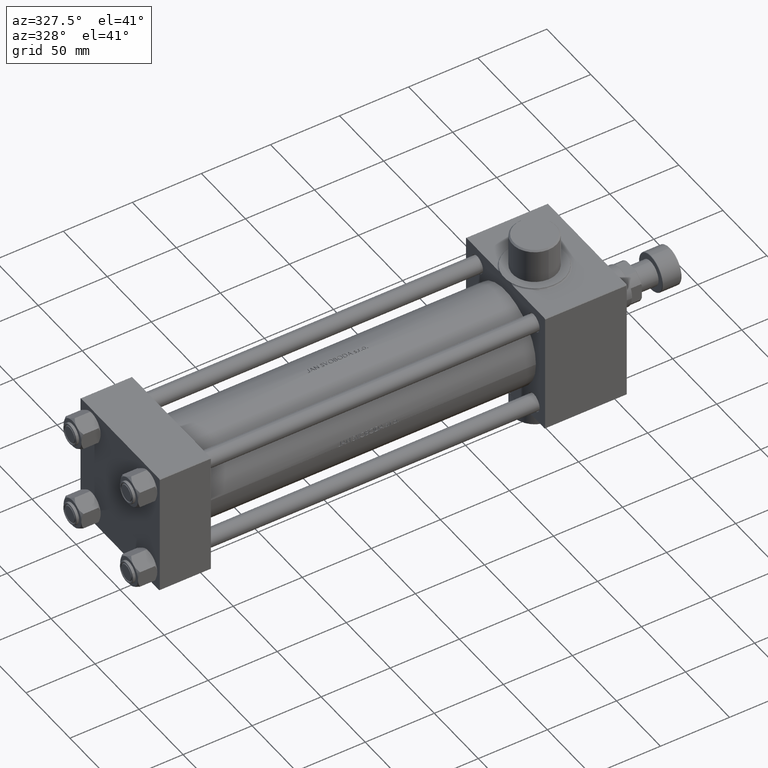
[diagram: clean part render]
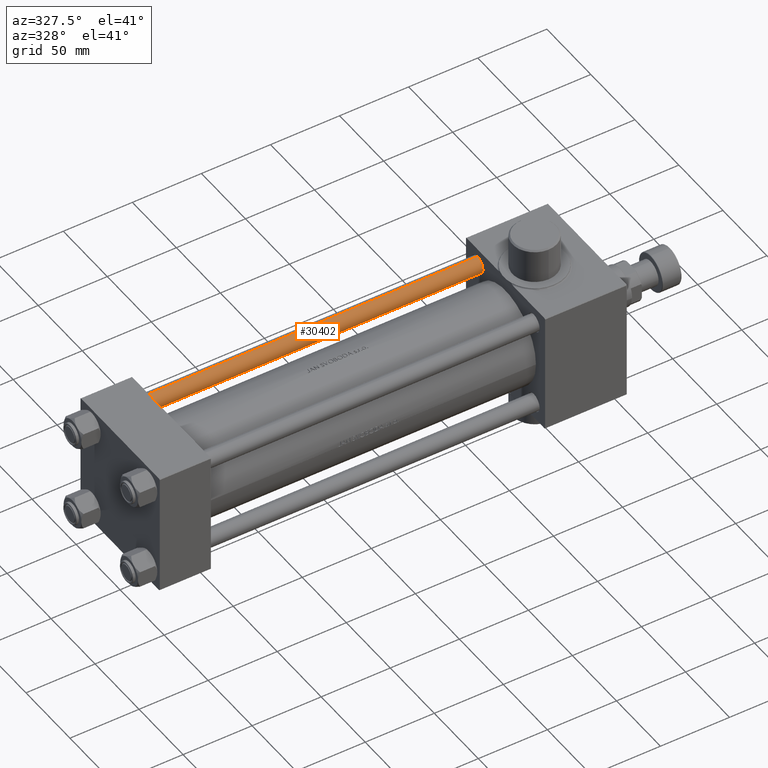
[diagram: same view with one face highlighted and labeled with its STEP entity id]
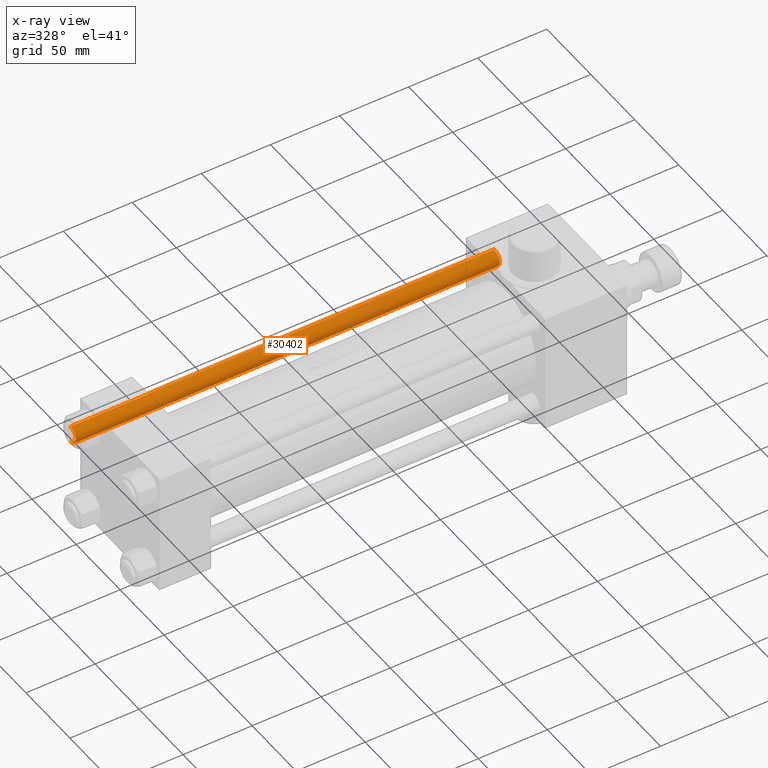
[diagram: x-ray of the same camera — body ghosted, the highlighted face saturated]
A machine part, auxiliary view. The second image highlights one B-rep face of the part: STEP entity #30402.
The next image is the same camera in x-ray: the body ghosted, the highlighted face saturated — about 0% of this face is hidden behind the body in this view.
In plain terms, the highlighted cylindrical surface (edge-blend (fillet) strip) has radius 6 mm, axis along (1, -0, 0).
Its self-contained STEP definition (entity closure, byte-faithful):
#3209 = VERTEX_POINT ( 'NONE', #24788 ) ;
#4349 = VECTOR ( 'NONE', #14843, 1000.000000000000000 ) ;
#7465 = LINE ( 'NONE', #7931, #4349 ) ;
#7869 = LINE ( 'NONE', #26436, #21107 ) ;
#7931 = CARTESIAN_POINT ( 'NONE',  ( -6.000000000000000888, 0.000000000000000000, 308.0000000000000000 ) ) ;
#10364 = DIRECTION ( 'NONE',  ( 1.000000000000000000, 0.000000000000000000, 0.000000000000000000 ) ) ;
#10816 = DIRECTION ( 'NONE',  ( -0.000000000000000000, -0.000000000000000000, 1.000000000000000000 ) ) ;
#11681 = DIRECTION ( 'NONE',  ( -0.000000000000000000, -0.000000000000000000, -1.000000000000000000 ) ) ;
#13627 = VERTEX_POINT ( 'NONE', #42666 ) ;
#14378 = CARTESIAN_POINT ( 'NONE',  ( 0.000000000000000000, 0.000000000000000000, 0.5000000000000559552 ) ) ;
#14444 = ORIENTED_EDGE ( 'NONE', *, *, #42744, .T. ) ;
#14843 = DIRECTION ( 'NONE',  ( -0.000000000000000000, -0.000000000000000000, -1.000000000000000000 ) ) ;
#18611 = CIRCLE ( 'NONE', #46669, 6.000000000000000888 ) ;
#18810 = DIRECTION ( 'NONE',  ( 0.000000000000000000, 0.000000000000000000, -1.000000000000000000 ) ) ;
#20052 = CIRCLE ( 'NONE', #29908, 6.000000000000000888 ) ;
#20176 = EDGE_CURVE ( 'NONE', #3209, #13627, #7869, .T. ) ;
#20708 = EDGE_CURVE ( 'NONE', #26702, #35475, #7465, .T. ) ;
#21107 = VECTOR ( 'NONE', #11681, 1000.000000000000000 ) ;
#21331 = EDGE_LOOP ( 'NONE', ( #32841, #14444, #36565, #26733 ) ) ;
#21916 = DIRECTION ( 'NONE',  ( -1.000000000000000000, 0.000000000000000000, 0.000000000000000000 ) ) ;
#23078 = CARTESIAN_POINT ( 'NONE',  ( 0.000000000000000000, 0.000000000000000000, 307.4999999999999432 ) ) ;
#24788 = CARTESIAN_POINT ( 'NONE',  ( 6.000000000000000888, 7.347880794884120722E-16, 307.4999999999999432 ) ) ;
#26436 = CARTESIAN_POINT ( 'NONE',  ( 6.000000000000000888, 7.347880794884120722E-16, 308.0000000000000000 ) ) ;
#26702 = VERTEX_POINT ( 'NONE', #43238 ) ;
#26733 = ORIENTED_EDGE ( 'NONE', *, *, #44751, .T. ) ;
#29755 = DIRECTION ( 'NONE',  ( -0.000000000000000000, -0.000000000000000000, -1.000000000000000000 ) ) ;
#29908 = AXIS2_PLACEMENT_3D ( 'NONE', #23078, #18810, #30452 ) ;
#30402 = ADVANCED_FACE ( 'NONE', ( #36881 ), #33323, .T. ) ;
#30452 = DIRECTION ( 'NONE',  ( 1.000000000000000000, 0.000000000000000000, 0.000000000000000000 ) ) ;
#32841 = ORIENTED_EDGE ( 'NONE', *, *, #20176, .F. ) ;
#33323 = CYLINDRICAL_SURFACE ( 'NONE', #43284, 6.000000000000000888 ) ;
#35475 = VERTEX_POINT ( 'NONE', #36805 ) ;
#36565 = ORIENTED_EDGE ( 'NONE', *, *, #20708, .T. ) ;
#36805 = CARTESIAN_POINT ( 'NONE',  ( -6.000000000000000888, 0.000000000000000000, 0.5000000000000559552 ) ) ;
#36881 = FACE_OUTER_BOUND ( 'NONE', #21331, .T. ) ;
#40448 = CARTESIAN_POINT ( 'NONE',  ( 0.000000000000000000, 0.000000000000000000, 308.0000000000000000 ) ) ;
#42666 = CARTESIAN_POINT ( 'NONE',  ( 6.000000000000000888, 7.347880794884120722E-16, 0.5000000000000559552 ) ) ;
#42744 = EDGE_CURVE ( 'NONE', #3209, #26702, #20052, .T. ) ;
#43238 = CARTESIAN_POINT ( 'NONE',  ( -6.000000000000000888, 0.000000000000000000, 307.4999999999999432 ) ) ;
#43284 = AXIS2_PLACEMENT_3D ( 'NONE', #40448, #29755, #21916 ) ;
#44751 = EDGE_CURVE ( 'NONE', #35475, #13627, #18611, .T. ) ;
#46669 = AXIS2_PLACEMENT_3D ( 'NONE', #14378, #10816, #10364 ) ;